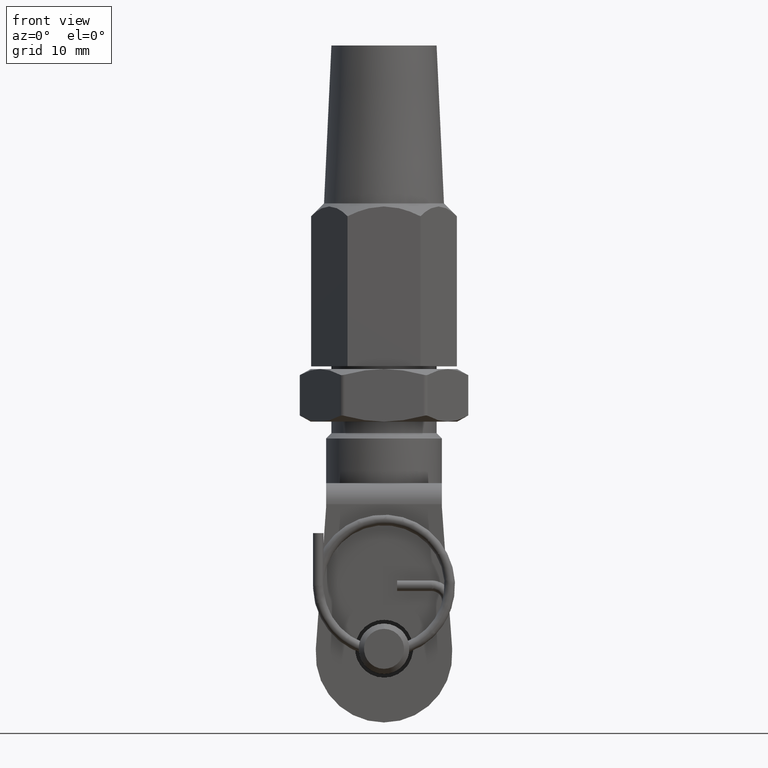
[diagram: clean part render]
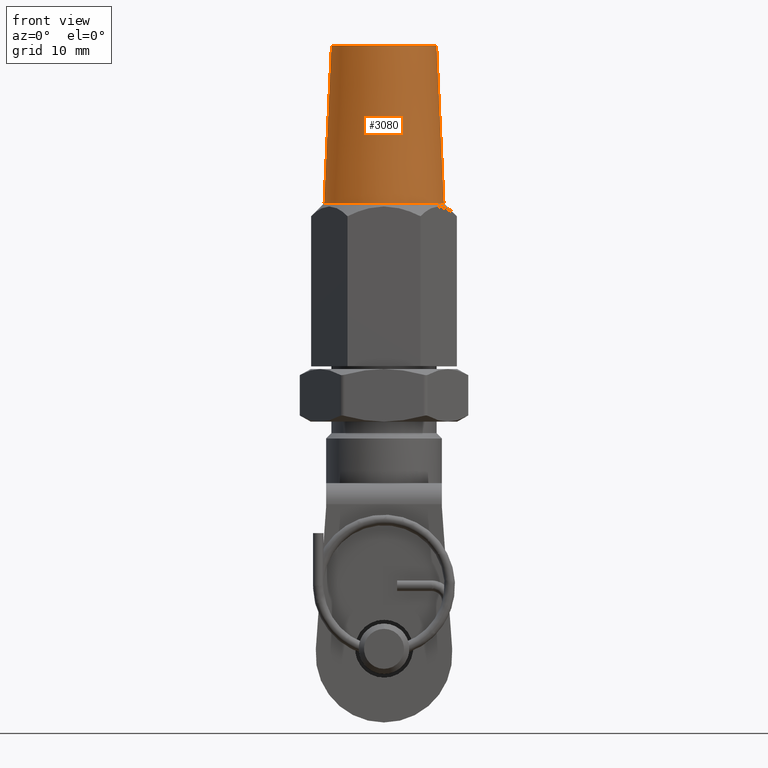
[diagram: same view with one face highlighted and labeled with its STEP entity id]
A machine part, front view. The second image highlights one B-rep face of the part: STEP entity #3080.
In plain terms, the highlighted conical surface has half-angle 2.672 deg.
Its self-contained STEP definition (entity closure, byte-faithful):
#663 = VERTEX_POINT ( 'NONE', #6235 ) ;
#1224 = VECTOR ( 'NONE', #8329, 1000.000000000000000 ) ;
#1271 = DIRECTION ( 'NONE',  ( -1.000000000000000000, 0.0000000000000000000, 0.0000000000000000000 ) ) ;
#1346 = CARTESIAN_POINT ( 'NONE',  ( 1.728549981472478400E-015, 0.0000000000000000000, 30.49999999999999600 ) ) ;
#1878 = DIRECTION ( 'NONE',  ( -1.010983201363394100E-016, -0.0000000000000000000, -1.000000000000000000 ) ) ;
#3080 = ADVANCED_FACE ( 'NONE', ( #7542 ), #5279, .T. ) ;
#3821 = EDGE_CURVE ( 'NONE', #16196, #22746, #9835, .T. ) ;
#4935 = ORIENTED_EDGE ( 'NONE', *, *, #13730, .F. ) ;
#5279 = CONICAL_SURFACE ( 'NONE', #11382, 4.999999999999999100, 0.04663283432006587500 ) ;
#5486 = ORIENTED_EDGE ( 'NONE', *, *, #21973, .F. ) ;
#6235 = CARTESIAN_POINT ( 'NONE',  ( -5.700000000000000200, 0.0000000000000000000, 15.50000000000000000 ) ) ;
#7064 = ORIENTED_EDGE ( 'NONE', *, *, #3821, .T. ) ;
#7258 = AXIS2_PLACEMENT_3D ( 'NONE', #19867, #1878, #14597 ) ;
#7542 = FACE_OUTER_BOUND ( 'NONE', #22022, .T. ) ;
#8329 = DIRECTION ( 'NONE',  ( 0.04661593469904400100, 5.708805521844639700E-018, -0.9989128864080864000 ) ) ;
#9071 = AXIS2_PLACEMENT_3D ( 'NONE', #16043, #19460, #14043 ) ;
#9221 = CARTESIAN_POINT ( 'NONE',  ( -4.999999999999997300, 0.0000000000000000000, 30.49999999999999600 ) ) ;
#9835 = CIRCLE ( 'NONE', #7258, 4.999999999999999100 ) ;
#10646 = DIRECTION ( 'NONE',  ( -1.010983201363394100E-016, -0.0000000000000000000, -1.000000000000000000 ) ) ;
#11048 = CARTESIAN_POINT ( 'NONE',  ( 5.700000000000000200, 6.980486755139913100E-016, 15.50000000000000000 ) ) ;
#11285 = DIRECTION ( 'NONE',  ( -0.04661593469904420900, 0.0000000000000000000, -0.9989128864080864000 ) ) ;
#11382 = AXIS2_PLACEMENT_3D ( 'NONE', #1346, #10646, #1271 ) ;
#12300 = LINE ( 'NONE', #22819, #1224 ) ;
#13730 = EDGE_CURVE ( 'NONE', #16196, #663, #19849, .T. ) ;
#14043 = DIRECTION ( 'NONE',  ( -1.000000000000000000, 0.0000000000000000000, 0.0000000000000000000 ) ) ;
#14597 = DIRECTION ( 'NONE',  ( -1.000000000000000000, 0.0000000000000000000, 0.0000000000000000000 ) ) ;
#14843 = CIRCLE ( 'NONE', #9071, 5.700000000000000200 ) ;
#15263 = CARTESIAN_POINT ( 'NONE',  ( -4.999999999999997300, 0.0000000000000000000, 30.49999999999999600 ) ) ;
#16043 = CARTESIAN_POINT ( 'NONE',  ( 2.120751794273876800E-016, 0.0000000000000000000, 15.50000000000000000 ) ) ;
#16196 = VERTEX_POINT ( 'NONE', #9221 ) ;
#16271 = VERTEX_POINT ( 'NONE', #11048 ) ;
#16447 = VECTOR ( 'NONE', #11285, 1000.000000000000000 ) ;
#17115 = CARTESIAN_POINT ( 'NONE',  ( 5.000000000000000900, 6.551860375438339700E-016, 30.49999999999999600 ) ) ;
#18340 = ORIENTED_EDGE ( 'NONE', *, *, #20094, .T. ) ;
#19460 = DIRECTION ( 'NONE',  ( -1.368226964047662500E-017, -0.0000000000000000000, -1.000000000000000000 ) ) ;
#19849 = LINE ( 'NONE', #15263, #16447 ) ;
#19867 = CARTESIAN_POINT ( 'NONE',  ( 1.728549981472478400E-015, 0.0000000000000000000, 30.49999999999999600 ) ) ;
#20094 = EDGE_CURVE ( 'NONE', #22746, #16271, #12300, .T. ) ;
#21973 = EDGE_CURVE ( 'NONE', #663, #16271, #14843, .T. ) ;
#22022 = EDGE_LOOP ( 'NONE', ( #7064, #18340, #5486, #4935 ) ) ;
#22746 = VERTEX_POINT ( 'NONE', #17115 ) ;
#22819 = CARTESIAN_POINT ( 'NONE',  ( 5.000000000000000900, 6.123233995736765300E-016, 30.49999999999999600 ) ) ;